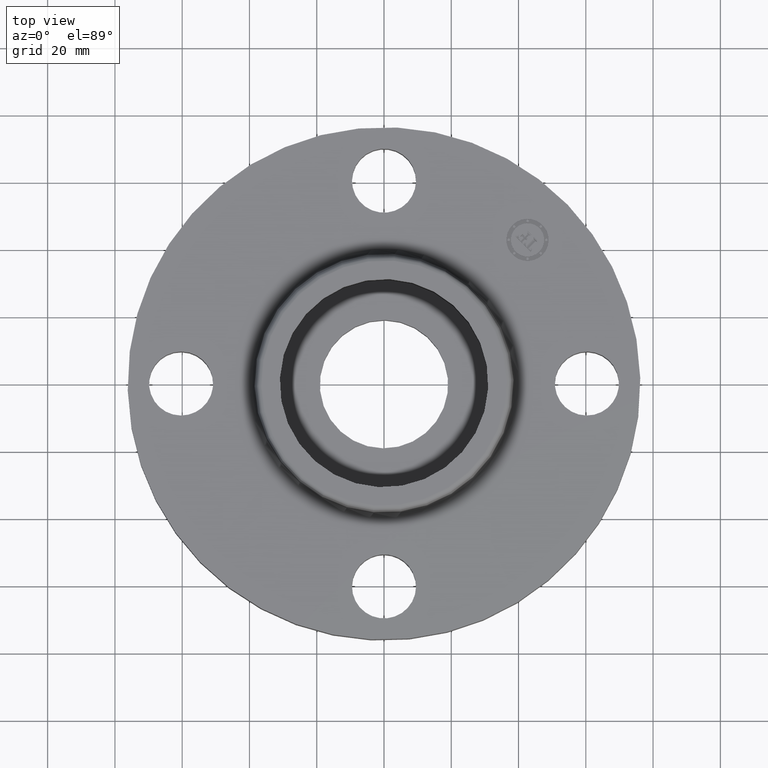
[diagram: clean part render]
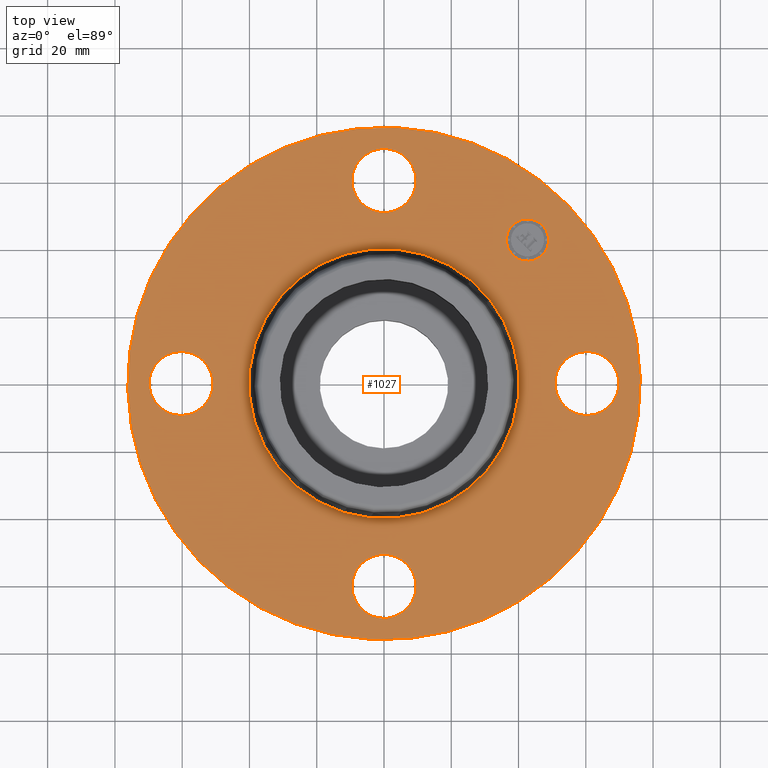
[diagram: same view with one face highlighted and labeled with its STEP entity id]
A machine part, top view. The second image highlights one B-rep face of the part: STEP entity #1027.
In plain terms, the highlighted planar face has unit normal (0, 0, -1).
Its self-contained STEP definition (entity closure, byte-faithful):
#437=AXIS2_PLACEMENT_3D('Circle Axis2P3D',#435,#436,$) ;
#456=AXIS2_PLACEMENT_3D('Circle Axis2P3D',#454,#455,$) ;
#487=AXIS2_PLACEMENT_3D('Circle Axis2P3D',#485,#486,$) ;
#499=AXIS2_PLACEMENT_3D('Circle Axis2P3D',#497,#498,$) ;
#531=AXIS2_PLACEMENT_3D('Circle Axis2P3D',#529,#530,$) ;
#543=AXIS2_PLACEMENT_3D('Circle Axis2P3D',#541,#542,$) ;
#575=AXIS2_PLACEMENT_3D('Circle Axis2P3D',#573,#574,$) ;
#587=AXIS2_PLACEMENT_3D('Circle Axis2P3D',#585,#586,$) ;
#619=AXIS2_PLACEMENT_3D('Circle Axis2P3D',#617,#618,$) ;
#631=AXIS2_PLACEMENT_3D('Circle Axis2P3D',#629,#630,$) ;
#649=AXIS2_PLACEMENT_3D('Circle Axis2P3D',#647,#648,$) ;
#684=AXIS2_PLACEMENT_3D('Circle Axis2P3D',#682,#683,$) ;
#983=AXIS2_PLACEMENT_3D('Plane Axis2P3D',#980,#981,#982) ;
#1011=AXIS2_PLACEMENT_3D('Circle Axis2P3D',#1009,#1010,$) ;
#1020=AXIS2_PLACEMENT_3D('Circle Axis2P3D',#1018,#1019,$) ;
#432=CARTESIAN_POINT('Vertex',(-1.43827661582,-2.63274768568,0.690000000003)) ;
#435=CARTESIAN_POINT('Axis2P3D Location',(0.,0.,0.690000000003)) ;
#439=CARTESIAN_POINT('Vertex',(1.43827661582,2.63274768568,0.690000000003)) ;
#454=CARTESIAN_POINT('Axis2P3D Location',(0.,0.,0.690000000003)) ;
#475=CARTESIAN_POINT('Vertex',(-2.55478457699,-0.32909346071,0.690000000003)) ;
#482=CARTESIAN_POINT('Vertex',(-2.19521542303,0.32909346071,0.690000000003)) ;
#485=CARTESIAN_POINT('Axis2P3D Location',(-2.37500000001,-1.56539187647E-016,0.690000000003)) ;
#497=CARTESIAN_POINT('Axis2P3D Location',(-2.37500000001,-1.56539187647E-016,0.690000000003)) ;
#519=CARTESIAN_POINT('Vertex',(-0.32909346071,2.55478457699,0.690000000003)) ;
#526=CARTESIAN_POINT('Vertex',(0.32909346071,2.19521542303,0.690000000003)) ;
#529=CARTESIAN_POINT('Axis2P3D Location',(0.,2.37500000001,0.690000000003)) ;
#541=CARTESIAN_POINT('Axis2P3D Location',(0.,2.37500000001,0.690000000003)) ;
#563=CARTESIAN_POINT('Vertex',(2.55478457699,0.32909346071,0.690000000003)) ;
#570=CARTESIAN_POINT('Vertex',(2.19521542303,-0.32909346071,0.690000000003)) ;
#573=CARTESIAN_POINT('Axis2P3D Location',(2.37500000001,-1.34314427152E-016,0.690000000003)) ;
#585=CARTESIAN_POINT('Axis2P3D Location',(2.37500000001,-1.34314427152E-016,0.690000000003)) ;
#607=CARTESIAN_POINT('Vertex',(0.32909346071,-2.55478457699,0.690000000003)) ;
#614=CARTESIAN_POINT('Vertex',(-0.32909346071,-2.19521542303,0.690000000003)) ;
#617=CARTESIAN_POINT('Axis2P3D Location',(2.90853614799E-016,-2.37500000001,0.690000000003)) ;
#629=CARTESIAN_POINT('Axis2P3D Location',(2.90853614799E-016,-2.37500000001,0.690000000003)) ;
#647=CARTESIAN_POINT('Axis2P3D Location',(0.,0.,0.690000000003)) ;
#651=CARTESIAN_POINT('Vertex',(0.757658221625,1.38688407194,0.690000000003)) ;
#653=CARTESIAN_POINT('Vertex',(-0.757658221625,-1.38688407194,0.690000000003)) ;
#682=CARTESIAN_POINT('Axis2P3D Location',(0.,0.,0.690000000003)) ;
#980=CARTESIAN_POINT('Axis2P3D Location',(0.,3.00000000001,0.690000000003)) ;
#1009=CARTESIAN_POINT('Axis2P3D Location',(1.67937860532,1.67937860532,0.690000000003)) ;
#1013=CARTESIAN_POINT('Vertex',(1.50436967698,1.85438753367,0.690000000003)) ;
#1015=CARTESIAN_POINT('Vertex',(1.85438753367,1.50436967698,0.690000000003)) ;
#1018=CARTESIAN_POINT('Axis2P3D Location',(1.67937860532,1.67937860532,0.690000000003)) ;
#436=DIRECTION('Axis2P3D Direction',(0.,0.,-0.0393700787402)) ;
#455=DIRECTION('Axis2P3D Direction',(0.,0.,-0.0393700787402)) ;
#486=DIRECTION('Axis2P3D Direction',(0.,0.,-0.0393700787402)) ;
#498=DIRECTION('Axis2P3D Direction',(0.,0.,-0.0393700787402)) ;
#530=DIRECTION('Axis2P3D Direction',(0.,-0.,-0.0393700787402)) ;
#542=DIRECTION('Axis2P3D Direction',(0.,-0.,-0.0393700787402)) ;
#574=DIRECTION('Axis2P3D Direction',(0.,-0.,-0.0393700787402)) ;
#586=DIRECTION('Axis2P3D Direction',(0.,-0.,-0.0393700787402)) ;
#618=DIRECTION('Axis2P3D Direction',(-0.,0.,-0.0393700787402)) ;
#630=DIRECTION('Axis2P3D Direction',(-0.,0.,-0.0393700787402)) ;
#648=DIRECTION('Axis2P3D Direction',(0.,0.,-0.0393700787402)) ;
#683=DIRECTION('Axis2P3D Direction',(0.,0.,-0.0393700787402)) ;
#981=DIRECTION('Axis2P3D Direction',(0.,0.,-0.0393700787402)) ;
#982=DIRECTION('Axis2P3D XDirection',(0.0393700787402,0.,0.)) ;
#1010=DIRECTION('Axis2P3D Direction',(0.,0.,-0.0393700787402)) ;
#1019=DIRECTION('Axis2P3D Direction',(0.,0.,-0.0393700787402)) ;
#986=ORIENTED_EDGE('',*,*,#458,.F.) ;
#987=ORIENTED_EDGE('',*,*,#441,.F.) ;
#990=ORIENTED_EDGE('',*,*,#533,.T.) ;
#991=ORIENTED_EDGE('',*,*,#545,.T.) ;
#994=ORIENTED_EDGE('',*,*,#686,.T.) ;
#995=ORIENTED_EDGE('',*,*,#655,.T.) ;
#998=ORIENTED_EDGE('',*,*,#589,.T.) ;
#999=ORIENTED_EDGE('',*,*,#577,.T.) ;
#1002=ORIENTED_EDGE('',*,*,#633,.T.) ;
#1003=ORIENTED_EDGE('',*,*,#621,.T.) ;
#1006=ORIENTED_EDGE('',*,*,#501,.T.) ;
#1007=ORIENTED_EDGE('',*,*,#489,.T.) ;
#1024=ORIENTED_EDGE('',*,*,#1017,.T.) ;
#1025=ORIENTED_EDGE('',*,*,#1022,.T.) ;
#992=FACE_BOUND('',#989,.T.) ;
#996=FACE_BOUND('',#993,.T.) ;
#1000=FACE_BOUND('',#997,.T.) ;
#1004=FACE_BOUND('',#1001,.T.) ;
#1008=FACE_BOUND('',#1005,.T.) ;
#1026=FACE_BOUND('',#1023,.T.) ;
#1027=ADVANCED_FACE('PartBody',(#988,#992,#996,#1000,#1004,#1008,#1026),#984,.F.) ;
#438=CIRCLE('generated circle',#437,3.00000000001) ;
#457=CIRCLE('generated circle',#456,3.00000000001) ;
#488=CIRCLE('generated circle',#487,0.375000000001) ;
#500=CIRCLE('generated circle',#499,0.375000000001) ;
#532=CIRCLE('generated circle',#531,0.375000000001) ;
#544=CIRCLE('generated circle',#543,0.375000000001) ;
#576=CIRCLE('generated circle',#575,0.375000000001) ;
#588=CIRCLE('generated circle',#587,0.375000000001) ;
#620=CIRCLE('generated circle',#619,0.375000000001) ;
#632=CIRCLE('generated circle',#631,0.375000000001) ;
#650=CIRCLE('generated circle',#649,1.58034597788) ;
#685=CIRCLE('generated circle',#684,1.58034597788) ;
#1012=CIRCLE('generated circle',#1011,0.247500000001) ;
#1021=CIRCLE('generated circle',#1020,0.247500000001) ;
#441=EDGE_CURVE('',#433,#440,#438,.T.) ;
#458=EDGE_CURVE('',#440,#433,#457,.T.) ;
#489=EDGE_CURVE('',#476,#483,#488,.T.) ;
#501=EDGE_CURVE('',#483,#476,#500,.T.) ;
#533=EDGE_CURVE('',#520,#527,#532,.T.) ;
#545=EDGE_CURVE('',#527,#520,#544,.T.) ;
#577=EDGE_CURVE('',#564,#571,#576,.T.) ;
#589=EDGE_CURVE('',#571,#564,#588,.T.) ;
#621=EDGE_CURVE('',#608,#615,#620,.T.) ;
#633=EDGE_CURVE('',#615,#608,#632,.T.) ;
#655=EDGE_CURVE('',#652,#654,#650,.T.) ;
#686=EDGE_CURVE('',#654,#652,#685,.T.) ;
#1017=EDGE_CURVE('',#1014,#1016,#1012,.T.) ;
#1022=EDGE_CURVE('',#1016,#1014,#1021,.T.) ;
#985=EDGE_LOOP('',(#986,#987)) ;
#989=EDGE_LOOP('',(#990,#991)) ;
#993=EDGE_LOOP('',(#994,#995)) ;
#997=EDGE_LOOP('',(#998,#999)) ;
#1001=EDGE_LOOP('',(#1002,#1003)) ;
#1005=EDGE_LOOP('',(#1006,#1007)) ;
#1023=EDGE_LOOP('',(#1024,#1025)) ;
#988=FACE_OUTER_BOUND('',#985,.T.) ;
#984=PLANE('',#983) ;
#433=VERTEX_POINT('',#432) ;
#440=VERTEX_POINT('',#439) ;
#476=VERTEX_POINT('',#475) ;
#483=VERTEX_POINT('',#482) ;
#520=VERTEX_POINT('',#519) ;
#527=VERTEX_POINT('',#526) ;
#564=VERTEX_POINT('',#563) ;
#571=VERTEX_POINT('',#570) ;
#608=VERTEX_POINT('',#607) ;
#615=VERTEX_POINT('',#614) ;
#652=VERTEX_POINT('',#651) ;
#654=VERTEX_POINT('',#653) ;
#1014=VERTEX_POINT('',#1013) ;
#1016=VERTEX_POINT('',#1015) ;